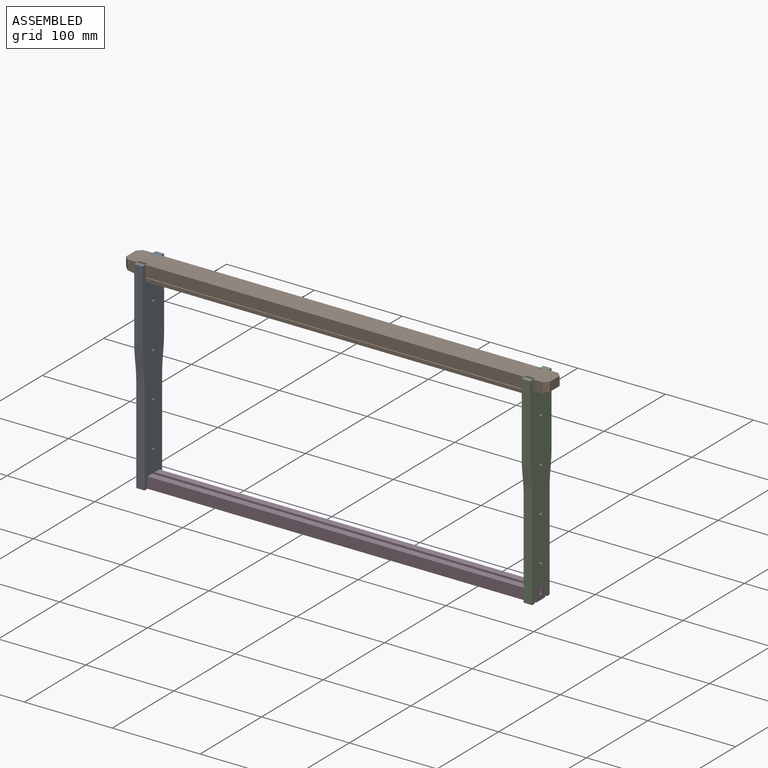
[diagram: assembled view]
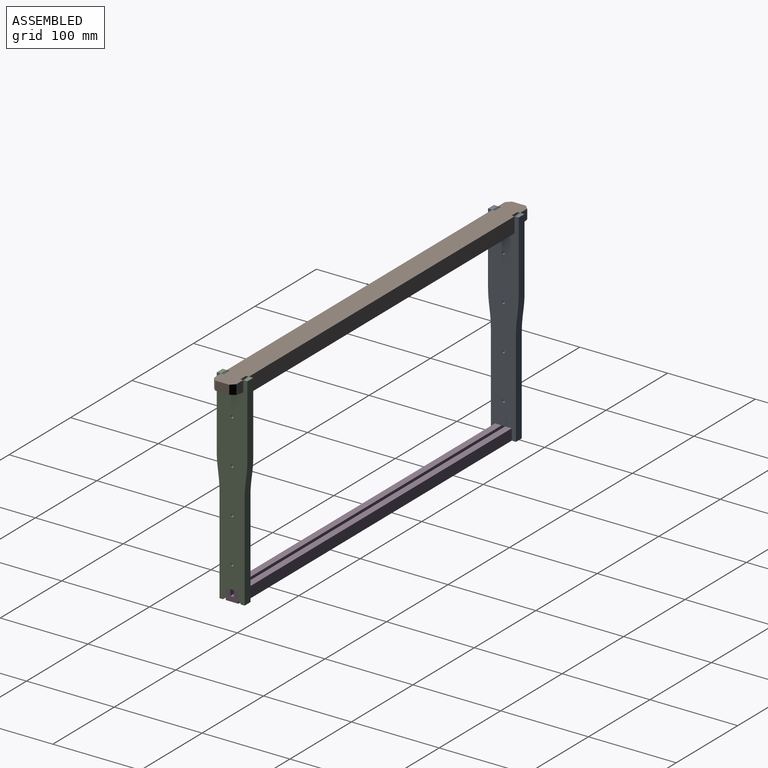
[diagram: assembled view, second angle]
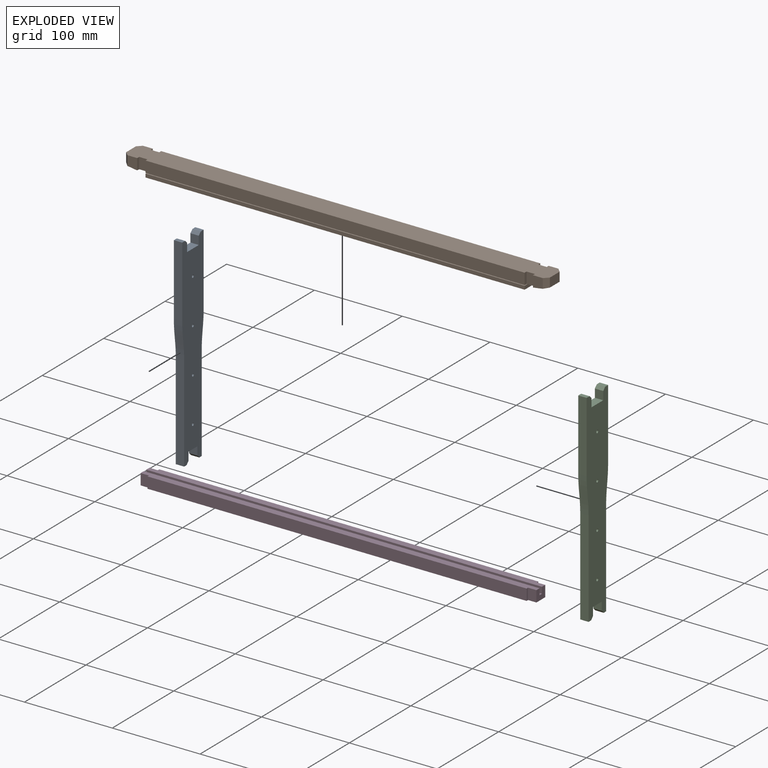
[diagram: exploded view]
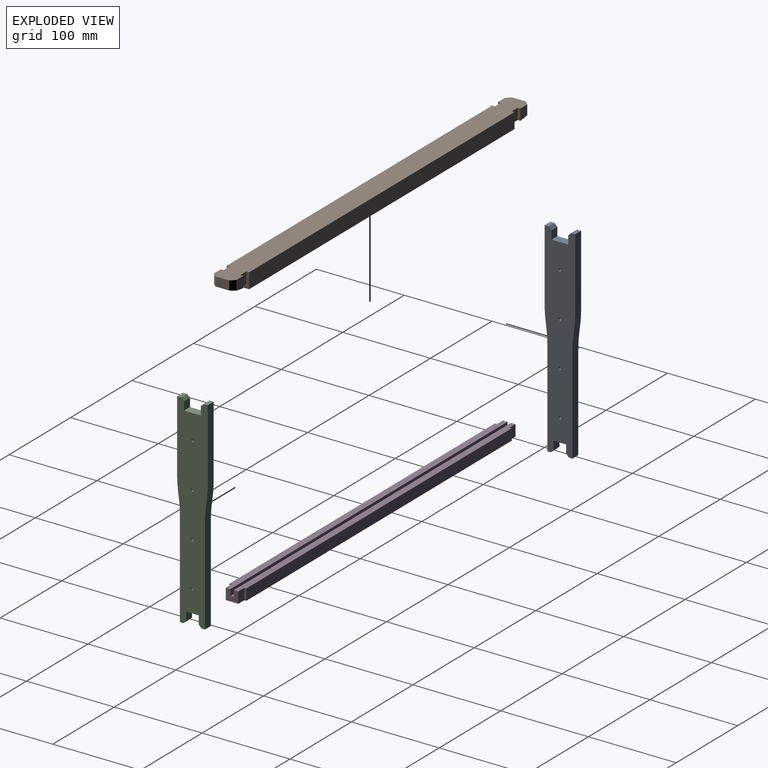
[diagram: exploded view, second angle]
ASSEMBLY  parts=4 mates=9
PART A: 30 faces, bbox 9.5x34.9x231.8 mm
  f0: plane 9.53x3.97mm, normal (0,0,-1), area 37.8mm2, adj f2,f3,f12,f23
  f1: plane 9.53x4.76mm, normal (0,0,1), area 45.4mm2, adj f2,f3,f5,f25
  f2: plane 231.78x34.93mm, normal (-1,0,0), area 6792.9mm2, adj f0,f1,f4,f5,f6,f7,f8,f9
  f3: plane 231.78x34.93mm, normal (1,0,0), area 6792.9mm2, adj f0,f1,f4,f5,f6,f7,f8,f9
  f4: plane 9.53x3.97mm, normal (0,0,-1), area 37.8mm2, adj f2,f3,f8,f22
  f5: plane 80.99x9.53mm, normal (0,-1,0), area 771.5mm2, adj f1,f2,f3,f15
  f6: plane 80.99x9.53mm, normal (0,1,0), area 771.5mm2, adj f2,f3,f7,f11
  f7: plane 9.53x4.76mm, normal (0,0,1), area 45.4mm2, adj f2,f3,f6,f24
  f8: plane 109.57x9.53mm, normal (0,1,0), area 1043.6mm2, adj f2,f3,f4,f10
  f9: plane 9.71x9.53mm, normal (0,0.99,-0.12), area 93.2mm2, adj f2,f3,f10,f11
  f10: cylinder r=127mm len=15.75mm, axis (-1,0,0), area 150.4mm2, adj f2,f3,f8,f9
  f11: cylinder r=127mm len=15.75mm, axis (1,0,0), area 150.4mm2, adj f2,f3,f6,f9
  f12: plane 109.57x9.53mm, normal (0,-1,0), area 1043.6mm2, adj f0,f2,f3,f14
  f13: plane 9.71x9.53mm, normal (0,-0.99,-0.12), area 93.2mm2, adj f2,f3,f14,f15
  f14: cylinder r=127mm len=15.75mm, axis (-1,0,0), area 150.4mm2, adj f2,f3,f12,f13
  f15: cylinder r=127mm len=15.75mm, axis (1,0,0), area 150.4mm2, adj f2,f3,f5,f13
  f16: plane 9.53x9.53mm, normal (0,1,0), area 90.7mm2, adj f2,f3,f18,f23
  f17: plane 9.53x9.53mm, normal (0,-1,0), area 90.7mm2, adj f2,f3,f18,f22
  f18: plane 14.29x9.53mm, normal (0,0,-1), area 136.1mm2, adj f2,f3,f16,f17
  f19: plane 9.53x9.53mm, normal (0,1,0), area 90.7mm2, adj f2,f3,f20,f25
  f20: plane 19.05x9.53mm, normal (0,0,1), area 181.5mm2, adj f2,f3,f19,f21
  f21: plane 9.53x9.53mm, normal (0,-1,0), area 90.7mm2, adj f2,f3,f20,f24
  f22: plane 9.53x3.18mm, normal (0,-0.71,-0.71), area 42.8mm2, adj f2,f3,f4,f17
  f23: plane 9.53x3.18mm, normal (0,0.71,-0.71), area 42.8mm2, adj f0,f2,f3,f16
  f24: plane 9.53x3.18mm, normal (0,-0.71,0.71), area 42.8mm2, adj f2,f3,f7,f21
  f25: plane 9.53x3.18mm, normal (0,0.71,0.71), area 42.8mm2, adj f1,f2,f3,f19
  f26: cylinder r=1.59mm len=9.53mm, axis (1,0,0), area 95mm2, adj f2,f3
  f27: cylinder r=1.59mm len=9.53mm, axis (1,0,0), area 95mm2, adj f2,f3
  f28: cylinder r=1.59mm len=9.53mm, axis (1,0,0), area 95mm2, adj f2,f3
  f29: cylinder r=1.59mm len=9.53mm, axis (1,0,0), area 95mm2, adj f2,f3
PART B: 42 faces, bbox 482.6x25.4x17.5 mm
  f0: plane 431.8x12.7mm, normal (0,-1,0), area 5483.9mm2, adj f1,f16,f28,f31
  f1: plane 12.7x3.18mm, normal (1,0,0), area 40.3mm2, adj f0,f16,f23,f28
  f2: plane 10.91x4.76mm, normal (-1,0,0), area 43.9mm2, adj f5,f7,f14,f28,f40,f41
  f3: plane 12.7x11.11mm, normal (0,-1,0), area 131.9mm2, adj f9,f16,f34,f37
  f4: plane 482.6x7.14mm, normal (0,-1,0), area 3167.8mm2, adj f6,f20,f24,f27,f30,f32,f33,f35
  f5: plane 482.6x7.14mm, normal (0,1,0), area 3167.8mm2, adj f2,f7,f20,f21,f28,f29,f34
  f6: plane 431.8x10.91mm, normal (0,0,-1), area 4712.7mm2, adj f4,f15,f24,f32
  f7: plane 431.8x10.91mm, normal (0,0,-1), area 4712.7mm2, adj f2,f5,f14,f21
  f8: plane 12.7x9.53mm, normal (0,-1,0), area 121mm2, adj f9,f16,f28,f31
  f9: plane 12.7x3.18mm, normal (1,0,0), area 40.3mm2, adj f3,f8,f16,f34
  f10: plane 12.7x3.18mm, normal (1,0,0), area 40.3mm2, adj f11,f12,f16,f35
  f11: plane 12.7x9.53mm, normal (0,1,0), area 121mm2, adj f10,f16,f32,f33
  f12: plane 12.7x11.11mm, normal (0,1,0), area 131.9mm2, adj f10,f16,f35,f36
  f13: plane 12.7x11.11mm, normal (0,1,0), area 131.9mm2, adj f16,f25,f30,f38
  f14: plane 431.8x3.97mm, normal (0,-1,0), area 1713.7mm2, adj f2,f7,f21,f40
  f15: plane 431.8x17.46mm, normal (0,1,0), area 7540.3mm2, adj f6,f16,f24,f32
  f16: plane 482.6x25.4mm, normal (0,0,1), area 12091.7mm2, adj f0,f1,f3,f8,f9,f10,f11,f12
  f17: plane 15.88x10.32mm, normal (1,0,0), area 163.8mm2, adj f16,f20,f29,f30,f38,f39
  f18: plane 12.7x11.11mm, normal (0,-1,0), area 131.9mm2, adj f16,f22,f29,f39
  f19: plane 15.88x10.32mm, normal (-1,0,0), area 163.8mm2, adj f16,f20,f34,f35,f36,f37
  f20: plane 482.6x3.57mm, normal (0,0,-1), area 1723.8mm2, adj f4,f5,f17,f19
  f21: plane 10.91x4.76mm, normal (1,0,0), area 43.9mm2, adj f5,f7,f14,f28,f40,f41
  f22: plane 12.7x3.18mm, normal (-1,0,0), area 40.3mm2, adj f16,f18,f23,f29
  f23: plane 12.7x9.53mm, normal (0,-1,0), area 121mm2, adj f1,f16,f22,f28
  f24: plane 17.46x10.91mm, normal (1,0,0), area 92.3mm2, adj f4,f6,f15,f16,f26,f27
  f25: plane 12.7x3.18mm, normal (-1,0,0), area 40.3mm2, adj f13,f16,f26,f30
  f26: plane 12.7x9.53mm, normal (0,1,0), area 121mm2, adj f16,f24,f25,f27
  f27: plane 9.53x7.74mm, normal (0,0,-1), area 73.7mm2, adj f4,f24,f26,f30
  f28: plane 450.85x10.91mm, normal (0,0,-1), area 4517.4mm2, adj f0,f1,f2,f5,f8,f21,f23,f29
  f29: plane 15.88x10.91mm, normal (0.15,0,-0.99), area 163.7mm2, adj f5,f17,f18,f22,f28,f39
  f30: plane 15.88x10.91mm, normal (0.15,0,-0.99), area 163.7mm2, adj f4,f13,f17,f25,f27,f38
  f31: plane 12.7x3.18mm, normal (-1,0,0), area 40.3mm2, adj f0,f8,f16,f28
  f32: plane 17.46x10.91mm, normal (-1,0,0), area 92.3mm2, adj f4,f6,f11,f15,f16,f33
  f33: plane 9.53x7.74mm, normal (0,0,-1), area 73.7mm2, adj f4,f11,f32,f35
  f34: plane 15.88x10.91mm, normal (-0.15,0,-0.99), area 163.7mm2, adj f3,f5,f9,f19,f28,f37
  f35: plane 15.88x10.91mm, normal (-0.15,0,-0.99), area 163.7mm2, adj f4,f10,f12,f19,f33,f36
  f36: plane 11.03x4.76mm, normal (-0.71,0.71,0), area 71.9mm2, adj f12,f16,f19,f35
  f37: plane 11.03x4.76mm, normal (-0.71,-0.71,0), area 71.9mm2, adj f3,f16,f19,f34
  f38: plane 11.03x4.76mm, normal (0.71,0.71,0), area 71.9mm2, adj f13,f16,f17,f30
  f39: plane 11.03x4.76mm, normal (0.71,-0.71,0), area 71.9mm2, adj f16,f17,f18,f29
  f40: plane 431.8x10.12mm, normal (0,0,1), area 4370mm2, adj f2,f14,f21,f41
  f41: plane 431.8x0.79mm, normal (0,-1,0), area 342.7mm2, adj f2,f21,f28,f40
PART C: same geometry as A
PART D: 18 faces, bbox 450.9x19.1x12.7 mm
  f0: plane 14.29x12.7mm, normal (-1,0,0), area 153.1mm2, adj f1,f2,f5,f7,f8,f9,f15,f16
  f1: plane 450.85x19.05mm, normal (0,0,-1), area 8498mm2, adj f0,f3,f4,f6,f10,f11,f12,f13
  f2: plane 450.85x7.54mm, normal (0,0,1), area 3354.3mm2, adj f0,f4,f6,f9,f10,f11,f14,f15
  f3: plane 431.8x12.7mm, normal (0,-1,0), area 5483.9mm2, adj f1,f5,f13,f17
  f4: plane 431.8x12.7mm, normal (0,1,0), area 5483.9mm2, adj f1,f2,f10,f14
  f5: plane 450.85x7.54mm, normal (0,0,1), area 3354.3mm2, adj f0,f3,f6,f7,f12,f13,f16,f17
  f6: plane 14.29x12.7mm, normal (1,0,0), area 153.1mm2, adj f1,f2,f5,f7,f8,f9,f11,f12
  f7: plane 450.85x7.14mm, normal (0,1,0), area 3220.8mm2, adj f0,f5,f6,f8
  f8: plane 450.85x3.97mm, normal (0,0,1), area 1789.3mm2, adj f0,f6,f7,f9
  f9: plane 450.85x7.14mm, normal (0,-1,0), area 3220.8mm2, adj f0,f2,f6,f8
  f10: plane 12.7x2.38mm, normal (1,0,0), area 30.2mm2, adj f1,f2,f4,f11
  f11: plane 12.7x9.53mm, normal (0,1,0), area 121mm2, adj f1,f2,f6,f10
  f12: plane 12.7x9.53mm, normal (0,-1,0), area 121mm2, adj f1,f5,f6,f13
  f13: plane 12.7x2.38mm, normal (1,0,0), area 30.2mm2, adj f1,f3,f5,f12
  f14: plane 12.7x2.38mm, normal (-1,0,0), area 30.2mm2, adj f1,f2,f4,f15
  f15: plane 12.7x9.53mm, normal (0,1,0), area 121mm2, adj f0,f1,f2,f14
  f16: plane 12.7x9.53mm, normal (0,-1,0), area 121mm2, adj f0,f1,f5,f17
  f17: plane 12.7x2.38mm, normal (-1,0,0), area 30.2mm2, adj f1,f3,f5,f16
PLACE A t=(-233.17,-0.16,-208.33)mm
PLACE B t=(-17.27,-12.86,5.98)mm fixed
PLACE C t=(208.16,-0.16,-208.33)mm
PLACE D t=(-17.27,-9.69,-208.33)mm
MATE planar C.f3 <-> B.f22  axis (1,0,0) through (208.16,-0.16,-87.26)mm
MATE planar A.f19 <-> B.f8  axis (0,1,0) through (-237.93,-9.69,15.51)mm
MATE planar A.f20 <-> B.f28  axis (0,0,1) through (-233.17,-0.16,10.74)mm
MATE planar C.f19 <-> B.f23  axis (0,1,0) through (203.39,-9.69,20.27)mm
MATE planar D.f2 <-> C.f18  axis (0,0,1) through (-17.27,5.56,-195.63)mm
MATE planar C.f20 <-> B.f28  axis (0,0,1) through (208.16,-0.16,10.74)mm
MATE planar B.f31 <-> A.f3  axis (-1,0,0) through (-233.17,-12.86,23.44)mm
MATE planar D.f12 <-> C.f16  axis (0,-1,0) through (203.39,-7.31,-201.98)mm
MATE planar D.f13 <-> C.f2  axis (1,0,0) through (198.63,-8.5,-201.98)mm
